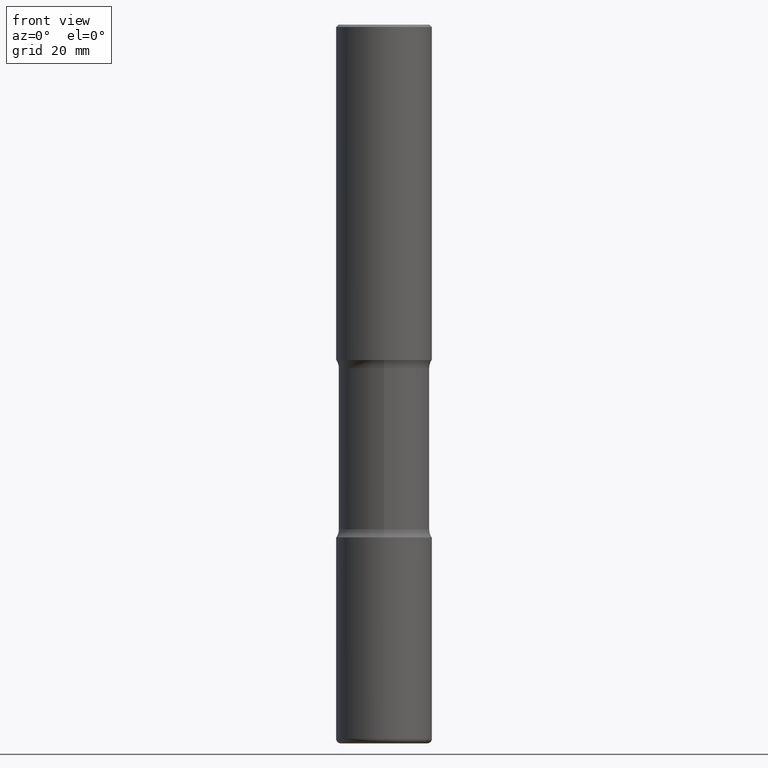
[diagram: clean part render]
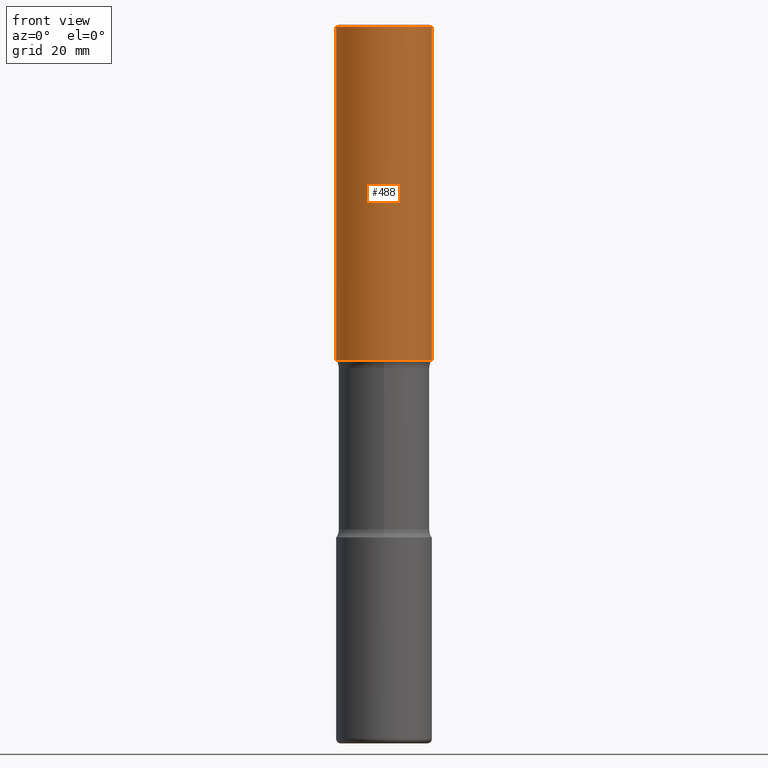
[diagram: same view with one face highlighted and labeled with its STEP entity id]
A machine part, front view. The second image highlights one B-rep face of the part: STEP entity #488.
In plain terms, the highlighted cylindrical surface (partial cylindrical patch) has radius 10 mm, axis along (-0, 0, 1).
Its self-contained STEP definition (entity closure, byte-faithful):
#24 = CARTESIAN_POINT ( 'NONE',  ( -0.3936999999999999389, 2.679362779428219524E-15, -0.02000000000000010103 ) ) ;
#29 = ORIENTED_EDGE ( 'NONE', *, *, #530, .T. ) ;
#38 = DIRECTION ( 'NONE',  ( 1.000000000000000000, -6.982962677686265133E-15, 0.000000000000000000 ) ) ;
#53 = AXIS2_PLACEMENT_3D ( 'NONE', #558, #160, #38 ) ;
#87 = DIRECTION ( 'NONE',  ( 1.000000000000000000, -6.982962677686266711E-15, 4.876176775795935793E-29 ) ) ;
#88 = DIRECTION ( 'NONE',  ( -2.445468806185136877E-29, 3.491481338843145188E-15, 1.000000000000000000 ) ) ;
#92 = ORIENTED_EDGE ( 'NONE', *, *, #338, .F. ) ;
#136 = ORIENTED_EDGE ( 'NONE', *, *, #304, .F. ) ;
#160 = DIRECTION ( 'NONE',  ( -2.445468806185136597E-29, 3.491481338843145583E-15, 1.000000000000000000 ) ) ;
#181 = VECTOR ( 'NONE', #88, 39.37007874015748143 ) ;
#207 = CARTESIAN_POINT ( 'NONE',  ( 0.3936999999999999389, -2.770807688499514945E-15, -0.02000000000000010103 ) ) ;
#228 = AXIS2_PLACEMENT_3D ( 'NONE', #369, #261, #87 ) ;
#237 = CARTESIAN_POINT ( 'NONE',  ( 0.3937000000000001054, -2.749192406205084005E-15, 1.919750796630860452E-29 ) ) ;
#253 = DIRECTION ( 'NONE',  ( -2.445468806185136597E-29, 3.491481338843145583E-15, 1.000000000000000000 ) ) ;
#261 = DIRECTION ( 'NONE',  ( -2.445468806185136597E-29, 3.491481338843145583E-15, 1.000000000000000000 ) ) ;
#304 = EDGE_CURVE ( 'NONE', #489, #417, #465, .T. ) ;
#306 = DIRECTION ( 'NONE',  ( -2.445468806185136877E-29, 3.491481338843145188E-15, 1.000000000000000000 ) ) ;
#333 = FACE_OUTER_BOUND ( 'NONE', #362, .T. ) ;
#336 = VERTEX_POINT ( 'NONE', #472 ) ;
#338 = EDGE_CURVE ( 'NONE', #417, #408, #446, .T. ) ;
#362 = EDGE_LOOP ( 'NONE', ( #136, #29, #367, #92 ) ) ;
#367 = ORIENTED_EDGE ( 'NONE', *, *, #470, .T. ) ;
#369 = CARTESIAN_POINT ( 'NONE',  ( 0.000000000000000000, 0.000000000000000000, 0.000000000000000000 ) ) ;
#373 = CIRCLE ( 'NONE', #53, 0.3937000000000002164 ) ;
#380 = CARTESIAN_POINT ( 'NONE',  ( -0.3937000000000002720, -2.048594773559823141E-15, -2.755899999999998240 ) ) ;
#383 = CARTESIAN_POINT ( 'NONE',  ( -0.3937000000000001054, 2.797406750687515181E-15, -1.936584745033357016E-29 ) ) ;
#408 = VERTEX_POINT ( 'NONE', #207 ) ;
#412 = VECTOR ( 'NONE', #306, 39.37007874015748143 ) ;
#417 = VERTEX_POINT ( 'NONE', #24 ) ;
#420 = AXIS2_PLACEMENT_3D ( 'NONE', #441, #253, #475 ) ;
#441 = CARTESIAN_POINT ( 'NONE',  ( 4.890937612370298557E-31, -6.982962677686327354E-17, -0.02000000000000010103 ) ) ;
#446 = CIRCLE ( 'NONE', #420, 0.3936999999999999389 ) ;
#448 = CYLINDRICAL_SURFACE ( 'NONE', #228, 0.3937000000000001054 ) ;
#465 = LINE ( 'NONE', #383, #412 ) ;
#470 = EDGE_CURVE ( 'NONE', #336, #408, #473, .T. ) ;
#472 = CARTESIAN_POINT ( 'NONE',  ( 0.3937000000000002164, -1.237136582792290287E-14, -2.755899999999998240 ) ) ;
#473 = LINE ( 'NONE', #237, #181 ) ;
#475 = DIRECTION ( 'NONE',  ( 1.000000000000000000, -6.982962677686266711E-15, 0.000000000000000000 ) ) ;
#488 = ADVANCED_FACE ( 'NONE', ( #333 ), #448, .T. ) ;
#489 = VERTEX_POINT ( 'NONE', #380 ) ;
#530 = EDGE_CURVE ( 'NONE', #489, #336, #373, .T. ) ;
#558 = CARTESIAN_POINT ( 'NONE',  ( 6.739467482965614869E-29, -9.622173421717819657E-15, -2.755899999999998240 ) ) ;